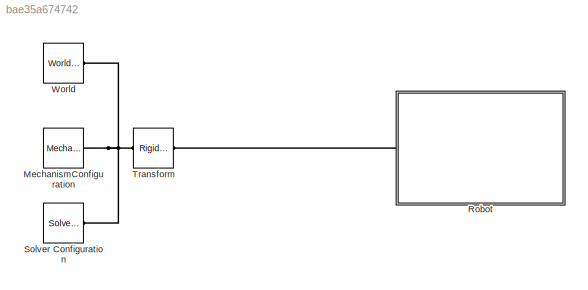
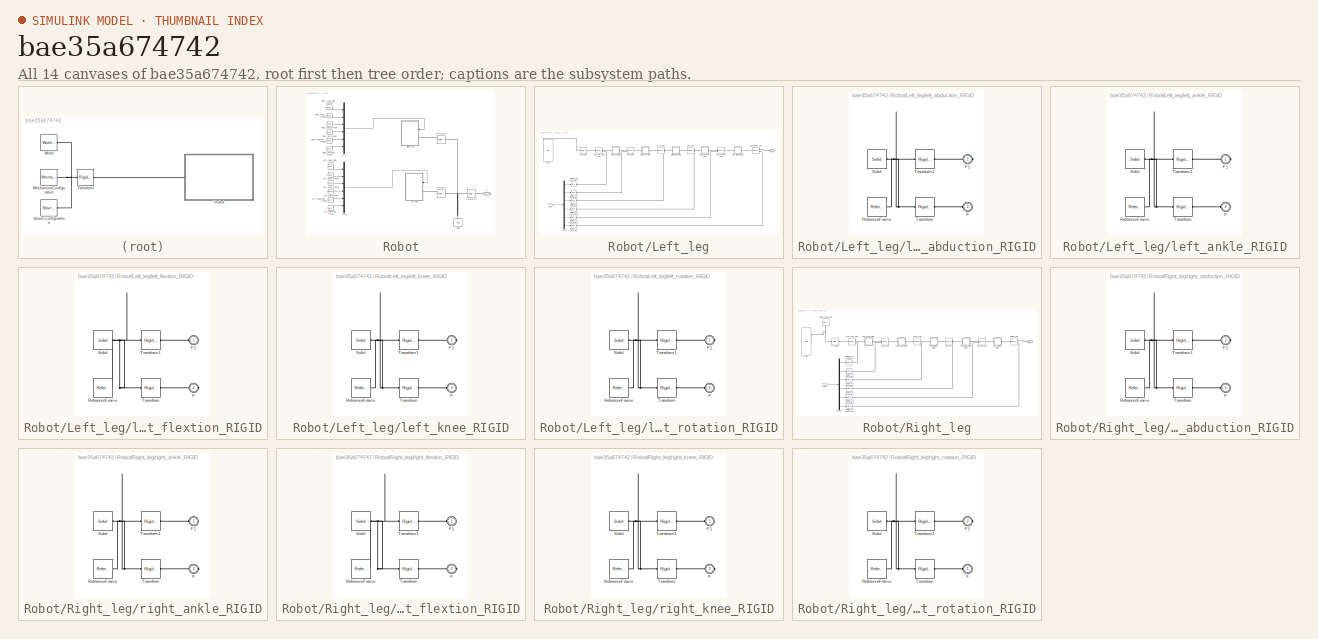
[diagram: thumbnail index - all 14 canvases of the model, root first then tree order]
MODEL slx_bae35a674742
KIND model
CONFIG AbsTol = auto
CONFIG EnableMultiTasking = off
CONFIG FixedStep = auto
CONFIG MaxStep = auto
CONFIG MinStep = auto
CONFIG RelTol = 1e-3
CONFIG SampleTimeConstraint = Unconstrained
CONFIG Solver = VariableStepAuto
CONFIG SolverName = VariableStepAuto
CONFIG StartTime = 0.0
CONFIG StopTime = 10.0
WORKSPACE source: external: MATLAB File  (data not in archive)
BLOCK [Reference] MechanismConfiguration  REF=sm_lib/Utilities/Mechanism
Configuration
  Ports = [0, 0, 0, 0, 0, 0, 1]
  SourceBlock = sm_lib/Utilities/Mechanism\nConfiguration
  SourceProductBaseCode = MS
  SourceProductName = Simscape Multibody
  SourceType = Mechanism\nConfiguration
BLOCK [SubSystem] Robot
  Ports = [0, 0, 0, 0, 0, 0, 1]
  RequestExecContextInheritance = off
BLOCK [Reference] Robot/Left_Abduction_Motion  REF=simulink/Sources/Repeating
Sequence
  Ports = [0, 1]
  SourceBlock = simulink/Sources/Repeating\nSequence
  SourceProductBaseCode = SL
  SourceProductName = Simulink
  SourceType = Repeating table
BLOCK [Reference] Robot/Left_Ankle Motion  REF=simulink/Sources/Repeating
Sequence
  Ports = [0, 1]
  SourceBlock = simulink/Sources/Repeating\nSequence
  SourceProductBaseCode = SL
  SourceProductName = Simulink
  SourceType = Repeating table
BLOCK [Reference] Robot/Left_Ankle_Twist_Motion  REF=simulink/Sources/Repeating
Sequence
  Ports = [0, 1]
  SourceBlock = simulink/Sources/Repeating\nSequence
  SourceProductBaseCode = SL
  SourceProductName = Simulink
  SourceType = Repeating table
BLOCK [Reference] Robot/Left_Hip_Motion  REF=simulink/Sources/Repeating
Sequence
  Ports = [0, 1]
  SourceBlock = simulink/Sources/Repeating\nSequence
  SourceProductBaseCode = SL
  SourceProductName = Simulink
  SourceType = Repeating table
BLOCK [Reference] Robot/Left_Knee_Motion  REF=simulink/Sources/Repeating
Sequence
  Ports = [0, 1]
  SourceBlock = simulink/Sources/Repeating\nSequence
  SourceProductBaseCode = SL
  SourceProductName = Simulink
  SourceType = Repeating table
BLOCK [Reference] Robot/Left_Rotation_Motion  REF=simulink/Sources/Repeating
Sequence
  Ports = [0, 1]
  SourceBlock = simulink/Sources/Repeating\nSequence
  SourceProductBaseCode = SL
  SourceProductName = Simulink
  SourceType = Repeating table
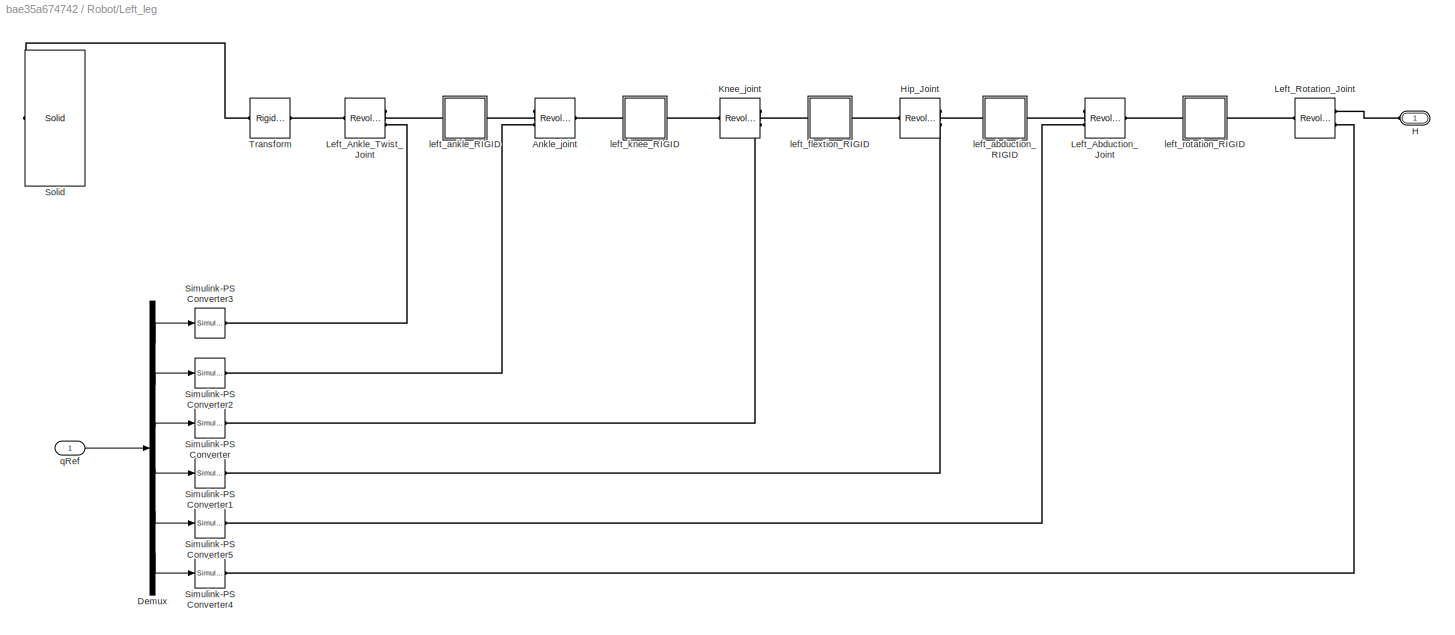
BLOCK [SubSystem] Robot/Left_leg
  Ports = [1, 0, 0, 0, 0, 1]
  RequestExecContextInheritance = off
BLOCK [Reference] Robot/Left_leg/Ankle_joint  REF=sm_lib/Joints/Revolute Joint
  Ports = [0, 0, 0, 0, 0, 2, 1]
  SourceBlock = sm_lib/Joints/Revolute Joint
  SourceProductBaseCode = MS
  SourceProductName = Simscape Multibody
  SourceType = Revolute Joint
BLOCK [Demux] Robot/Left_leg/Demux
  DisplayOption = bar
  Outputs = 6
  Ports = [1, 6]
BLOCK [PMIOPort] Robot/Left_leg/H
  Side = Left
BLOCK [Reference] Robot/Left_leg/Hip_Joint  REF=sm_lib/Joints/Revolute Joint
  Ports = [0, 0, 0, 0, 0, 2, 1]
  SourceBlock = sm_lib/Joints/Revolute Joint
  SourceProductBaseCode = MS
  SourceProductName = Simscape Multibody
  SourceType = Revolute Joint
BLOCK [Reference] Robot/Left_leg/Knee_joint  REF=sm_lib/Joints/Revolute Joint
  Ports = [0, 0, 0, 0, 0, 2, 1]
  SourceBlock = sm_lib/Joints/Revolute Joint
  SourceProductBaseCode = MS
  SourceProductName = Simscape Multibody
  SourceType = Revolute Joint
BLOCK [Reference] Robot/Left_leg/Left_Abduction_Joint  REF=sm_lib/Joints/Revolute Joint
  Ports = [0, 0, 0, 0, 0, 2, 1]
  SourceBlock = sm_lib/Joints/Revolute Joint
  SourceProductBaseCode = MS
  SourceProductName = Simscape Multibody
  SourceType = Revolute Joint
BLOCK [Reference] Robot/Left_leg/Left_Ankle_Twist_Joint  REF=sm_lib/Joints/Revolute Joint
  Ports = [0, 0, 0, 0, 0, 2, 1]
  SourceBlock = sm_lib/Joints/Revolute Joint
  SourceProductBaseCode = MS
  SourceProductName = Simscape Multibody
  SourceType = Revolute Joint
BLOCK [Reference] Robot/Left_leg/Left_Rotation_Joint  REF=sm_lib/Joints/Revolute Joint
  Ports = [0, 0, 0, 0, 0, 2, 1]
  SourceBlock = sm_lib/Joints/Revolute Joint
  SourceProductBaseCode = MS
  SourceProductName = Simscape Multibody
  SourceType = Revolute Joint
BLOCK [Reference] Robot/Left_leg/Simulink-PS Converter  REF=nesl_utility/Simulink-PS
Converter
  Ports = [1, 0, 0, 0, 0, 0, 1]
  SourceBlock = nesl_utility/Simulink-PS\nConverter
  SourceProductBaseCode = SS
  SourceProductName = Simscape
  SourceType = Simulink-PS\nConverter
BLOCK [Reference] Robot/Left_leg/Simulink-PS Converter1  REF=nesl_utility/Simulink-PS
Converter
  Ports = [1, 0, 0, 0, 0, 0, 1]
  SourceBlock = nesl_utility/Simulink-PS\nConverter
  SourceProductBaseCode = SS
  SourceProductName = Simscape
  SourceType = Simulink-PS\nConverter
BLOCK [Reference] Robot/Left_leg/Simulink-PS Converter2  REF=nesl_utility/Simulink-PS
Converter
  Ports = [1, 0, 0, 0, 0, 0, 1]
  SourceBlock = nesl_utility/Simulink-PS\nConverter
  SourceProductBaseCode = SS
  SourceProductName = Simscape
  SourceType = Simulink-PS\nConverter
BLOCK [Reference] Robot/Left_leg/Simulink-PS Converter3  REF=nesl_utility/Simulink-PS
Converter
  Ports = [1, 0, 0, 0, 0, 0, 1]
  SourceBlock = nesl_utility/Simulink-PS\nConverter
  SourceProductBaseCode = SS
  SourceProductName = Simscape
  SourceType = Simulink-PS\nConverter
BLOCK [Reference] Robot/Left_leg/Simulink-PS Converter4  REF=nesl_utility/Simulink-PS
Converter
  Ports = [1, 0, 0, 0, 0, 0, 1]
  SourceBlock = nesl_utility/Simulink-PS\nConverter
  SourceProductBaseCode = SS
  SourceProductName = Simscape
  SourceType = Simulink-PS\nConverter
BLOCK [Reference] Robot/Left_leg/Simulink-PS Converter5  REF=nesl_utility/Simulink-PS
Converter
  Ports = [1, 0, 0, 0, 0, 0, 1]
  SourceBlock = nesl_utility/Simulink-PS\nConverter
  SourceProductBaseCode = SS
  SourceProductName = Simscape
  SourceType = Simulink-PS\nConverter
BLOCK [Reference] Robot/Left_leg/Solid  REF=sm_lib/Body Elements/Solid
  Ports = [0, 0, 0, 0, 0, 0, 1]
  SourceBlock = sm_lib/Body Elements/Solid
  SourceProductBaseCode = MS
  SourceProductName = Simscape Multibody
  SourceType = Solid
BLOCK [Reference] Robot/Left_leg/Transform  REF=sm_lib/Frames and
Transforms/Rigid
Transform
  Ports = [0, 0, 0, 0, 0, 1, 1]
  SourceBlock = sm_lib/Frames and\nTransforms/Rigid\nTransform
  SourceProductBaseCode = MS
  SourceProductName = Simscape Multibody
  SourceType = Rigid\nTransform
BLOCK [SubSystem] Robot/Left_leg/left_abduction_RIGID
  Ports = [0, 0, 0, 0, 0, 1, 1]
  RequestExecContextInheritance = off
BLOCK [PMIOPort] Robot/Left_leg/left_abduction_RIGID/F
  Port = 2
  Side = Left
BLOCK [PMIOPort] Robot/Left_leg/left_abduction_RIGID/F1
  Side = Right
BLOCK [Reference] Robot/Left_leg/left_abduction_RIGID/ReferenceFrame  REF=sm_lib/Frames and
Transforms/Reference
Frame
  Ports = [0, 0, 0, 0, 0, 0, 1]
  SourceBlock = sm_lib/Frames and\nTransforms/Reference\nFrame
  SourceProductBaseCode = MS
  SourceProductName = Simscape Multibody
  SourceType = Reference\nFrame
BLOCK [Reference] Robot/Left_leg/left_abduction_RIGID/Solid  REF=sm_lib/Body Elements/Solid
  Ports = [0, 0, 0, 0, 0, 0, 1]
  SourceBlock = sm_lib/Body Elements/Solid
  SourceProductBaseCode = MS
  SourceProductName = Simscape Multibody
  SourceType = Solid
BLOCK [Reference] Robot/Left_leg/left_abduction_RIGID/Transform  REF=sm_lib/Frames and
Transforms/Rigid
Transform
  Ports = [0, 0, 0, 0, 0, 1, 1]
  SourceBlock = sm_lib/Frames and\nTransforms/Rigid\nTransform
  SourceProductBaseCode = MS
  SourceProductName = Simscape Multibody
  SourceType = Rigid\nTransform
BLOCK [Reference] Robot/Left_leg/left_abduction_RIGID/Transform1  REF=sm_lib/Frames and
Transforms/Rigid
Transform
  Ports = [0, 0, 0, 0, 0, 1, 1]
  SourceBlock = sm_lib/Frames and\nTransforms/Rigid\nTransform
  SourceProductBaseCode = MS
  SourceProductName = Simscape Multibody
  SourceType = Rigid\nTransform
BLOCK [SubSystem] Robot/Left_leg/left_ankle_RIGID
  Ports = [0, 0, 0, 0, 0, 1, 1]
  RequestExecContextInheritance = off
BLOCK [PMIOPort] Robot/Left_leg/left_ankle_RIGID/F
  Port = 2
  Side = Left
BLOCK [PMIOPort] Robot/Left_leg/left_ankle_RIGID/F1
  Side = Right
BLOCK [Reference] Robot/Left_leg/left_ankle_RIGID/ReferenceFrame  REF=sm_lib/Frames and
Transforms/Reference
Frame
  Ports = [0, 0, 0, 0, 0, 0, 1]
  SourceBlock = sm_lib/Frames and\nTransforms/Reference\nFrame
  SourceProductBaseCode = MS
  SourceProductName = Simscape Multibody
  SourceType = Reference\nFrame
BLOCK [Reference] Robot/Left_leg/left_ankle_RIGID/Solid  REF=sm_lib/Body Elements/Solid
  Ports = [0, 0, 0, 0, 0, 0, 1]
  SourceBlock = sm_lib/Body Elements/Solid
  SourceProductBaseCode = MS
  SourceProductName = Simscape Multibody
  SourceType = Solid
BLOCK [Reference] Robot/Left_leg/left_ankle_RIGID/Transform  REF=sm_lib/Frames and
Transforms/Rigid
Transform
  Ports = [0, 0, 0, 0, 0, 1, 1]
  SourceBlock = sm_lib/Frames and\nTransforms/Rigid\nTransform
  SourceProductBaseCode = MS
  SourceProductName = Simscape Multibody
  SourceType = Rigid\nTransform
BLOCK [Reference] Robot/Left_leg/left_ankle_RIGID/Transform1  REF=sm_lib/Frames and
Transforms/Rigid
Transform
  Ports = [0, 0, 0, 0, 0, 1, 1]
  SourceBlock = sm_lib/Frames and\nTransforms/Rigid\nTransform
  SourceProductBaseCode = MS
  SourceProductName = Simscape Multibody
  SourceType = Rigid\nTransform
BLOCK [SubSystem] Robot/Left_leg/left_flextion_RIGID
  Ports = [0, 0, 0, 0, 0, 1, 1]
  RequestExecContextInheritance = off
BLOCK [PMIOPort] Robot/Left_leg/left_flextion_RIGID/F
  Port = 2
  Side = Right
BLOCK [PMIOPort] Robot/Left_leg/left_flextion_RIGID/F1
  Side = Left
BLOCK [Reference] Robot/Left_leg/left_flextion_RIGID/ReferenceFrame  REF=sm_lib/Frames and
Transforms/Reference
Frame
  Ports = [0, 0, 0, 0, 0, 0, 1]
  SourceBlock = sm_lib/Frames and\nTransforms/Reference\nFrame
  SourceProductBaseCode = MS
  SourceProductName = Simscape Multibody
  SourceType = Reference\nFrame
BLOCK [Reference] Robot/Left_leg/left_flextion_RIGID/Solid  REF=sm_lib/Body Elements/Solid
  Ports = [0, 0, 0, 0, 0, 0, 1]
  SourceBlock = sm_lib/Body Elements/Solid
  SourceProductBaseCode = MS
  SourceProductName = Simscape Multibody
  SourceType = Solid
BLOCK [Reference] Robot/Left_leg/left_flextion_RIGID/Transform  REF=sm_lib/Frames and
Transforms/Rigid
Transform
  Ports = [0, 0, 0, 0, 0, 1, 1]
  SourceBlock = sm_lib/Frames and\nTransforms/Rigid\nTransform
  SourceProductBaseCode = MS
  SourceProductName = Simscape Multibody
  SourceType = Rigid\nTransform
BLOCK [Reference] Robot/Left_leg/left_flextion_RIGID/Transform1  REF=sm_lib/Frames and
Transforms/Rigid
Transform
  Ports = [0, 0, 0, 0, 0, 1, 1]
  SourceBlock = sm_lib/Frames and\nTransforms/Rigid\nTransform
  SourceProductBaseCode = MS
  SourceProductName = Simscape Multibody
  SourceType = Rigid\nTransform
BLOCK [SubSystem] Robot/Left_leg/left_knee_RIGID
  Ports = [0, 0, 0, 0, 0, 1, 1]
  RequestExecContextInheritance = off
BLOCK [PMIOPort] Robot/Left_leg/left_knee_RIGID/F
  Port = 2
  Side = Left
BLOCK [PMIOPort] Robot/Left_leg/left_knee_RIGID/F1
  Side = Right
BLOCK [Reference] Robot/Left_leg/left_knee_RIGID/ReferenceFrame  REF=sm_lib/Frames and
Transforms/Reference
Frame
  Ports = [0, 0, 0, 0, 0, 0, 1]
  SourceBlock = sm_lib/Frames and\nTransforms/Reference\nFrame
  SourceProductBaseCode = MS
  SourceProductName = Simscape Multibody
  SourceType = Reference\nFrame
BLOCK [Reference] Robot/Left_leg/left_knee_RIGID/Solid  REF=sm_lib/Body Elements/Solid
  Ports = [0, 0, 0, 0, 0, 0, 1]
  SourceBlock = sm_lib/Body Elements/Solid
  SourceProductBaseCode = MS
  SourceProductName = Simscape Multibody
  SourceType = Solid
BLOCK [Reference] Robot/Left_leg/left_knee_RIGID/Transform  REF=sm_lib/Frames and
Transforms/Rigid
Transform
  Ports = [0, 0, 0, 0, 0, 1, 1]
  SourceBlock = sm_lib/Frames and\nTransforms/Rigid\nTransform
  SourceProductBaseCode = MS
  SourceProductName = Simscape Multibody
  SourceType = Rigid\nTransform
BLOCK [Reference] Robot/Left_leg/left_knee_RIGID/Transform1  REF=sm_lib/Frames and
Transforms/Rigid
Transform
  Ports = [0, 0, 0, 0, 0, 1, 1]
  SourceBlock = sm_lib/Frames and\nTransforms/Rigid\nTransform
  SourceProductBaseCode = MS
  SourceProductName = Simscape Multibody
  SourceType = Rigid\nTransform
BLOCK [SubSystem] Robot/Left_leg/left_rotation_RIGID
  Ports = [0, 0, 0, 0, 0, 1, 1]
  RequestExecContextInheritance = off
BLOCK [PMIOPort] Robot/Left_leg/left_rotation_RIGID/F
  Port = 2
  Side = Left
BLOCK [PMIOPort] Robot/Left_leg/left_rotation_RIGID/F1
  Side = Right
BLOCK [Reference] Robot/Left_leg/left_rotation_RIGID/ReferenceFrame  REF=sm_lib/Frames and
Transforms/Reference
Frame
  Ports = [0, 0, 0, 0, 0, 0, 1]
  SourceBlock = sm_lib/Frames and\nTransforms/Reference\nFrame
  SourceProductBaseCode = MS
  SourceProductName = Simscape Multibody
  SourceType = Reference\nFrame
BLOCK [Reference] Robot/Left_leg/left_rotation_RIGID/Solid  REF=sm_lib/Body Elements/Solid
  Ports = [0, 0, 0, 0, 0, 0, 1]
  SourceBlock = sm_lib/Body Elements/Solid
  SourceProductBaseCode = MS
  SourceProductName = Simscape Multibody
  SourceType = Solid
BLOCK [Reference] Robot/Left_leg/left_rotation_RIGID/Transform  REF=sm_lib/Frames and
Transforms/Rigid
Transform
  Ports = [0, 0, 0, 0, 0, 1, 1]
  SourceBlock = sm_lib/Frames and\nTransforms/Rigid\nTransform
  SourceProductBaseCode = MS
  SourceProductName = Simscape Multibody
  SourceType = Rigid\nTransform
BLOCK [Reference] Robot/Left_leg/left_rotation_RIGID/Transform1  REF=sm_lib/Frames and
Transforms/Rigid
Transform
  Ports = [0, 0, 0, 0, 0, 1, 1]
  SourceBlock = sm_lib/Frames and\nTransforms/Rigid\nTransform
  SourceProductBaseCode = MS
  SourceProductName = Simscape Multibody
  SourceType = Rigid\nTransform
BLOCK [Inport] Robot/Left_leg/qRef
  IconDisplay = Port number
BLOCK [Mux] Robot/Mux
  DisplayOption = bar
  Inputs = 6
  Ports = [6, 1]
BLOCK [Mux] Robot/Mux1
  DisplayOption = bar
  Inputs = 6
  Ports = [6, 1]
BLOCK [PMIOPort] Robot/R
  Side = Right
BLOCK [Reference] Robot/Right_Abduction_Motion  REF=simulink/Sources/Repeating
Sequence
  Ports = [0, 1]
  SourceBlock = simulink/Sources/Repeating\nSequence
  SourceProductBaseCode = SL
  SourceProductName = Simulink
  SourceType = Repeating table
BLOCK [Reference] Robot/Right_Ankle_Motion  REF=simulink/Sources/Repeating
Sequence
  Ports = [0, 1]
  SourceBlock = simulink/Sources/Repeating\nSequence
  SourceProductBaseCode = SL
  SourceProductName = Simulink
  SourceType = Repeating table
BLOCK [Reference] Robot/Right_Ankle_Twist_Motion  REF=simulink/Sources/Repeating
Sequence
  Ports = [0, 1]
  SourceBlock = simulink/Sources/Repeating\nSequence
  SourceProductBaseCode = SL
  SourceProductName = Simulink
  SourceType = Repeating table
BLOCK [Reference] Robot/Right_Hip_Motion  REF=simulink/Sources/Repeating
Sequence
  Ports = [0, 1]
  SourceBlock = simulink/Sources/Repeating\nSequence
  SourceProductBaseCode = SL
  SourceProductName = Simulink
  SourceType = Repeating table
BLOCK [Reference] Robot/Right_Knee_Motion  REF=simulink/Sources/Repeating
Sequence
  Ports = [0, 1]
  SourceBlock = simulink/Sources/Repeating\nSequence
  SourceProductBaseCode = SL
  SourceProductName = Simulink
  SourceType = Repeating table
BLOCK [Reference] Robot/Right_Rotation_Motion  REF=simulink/Sources/Repeating
Sequence
  Ports = [0, 1]
  SourceBlock = simulink/Sources/Repeating\nSequence
  SourceProductBaseCode = SL
  SourceProductName = Simulink
  SourceType = Repeating table
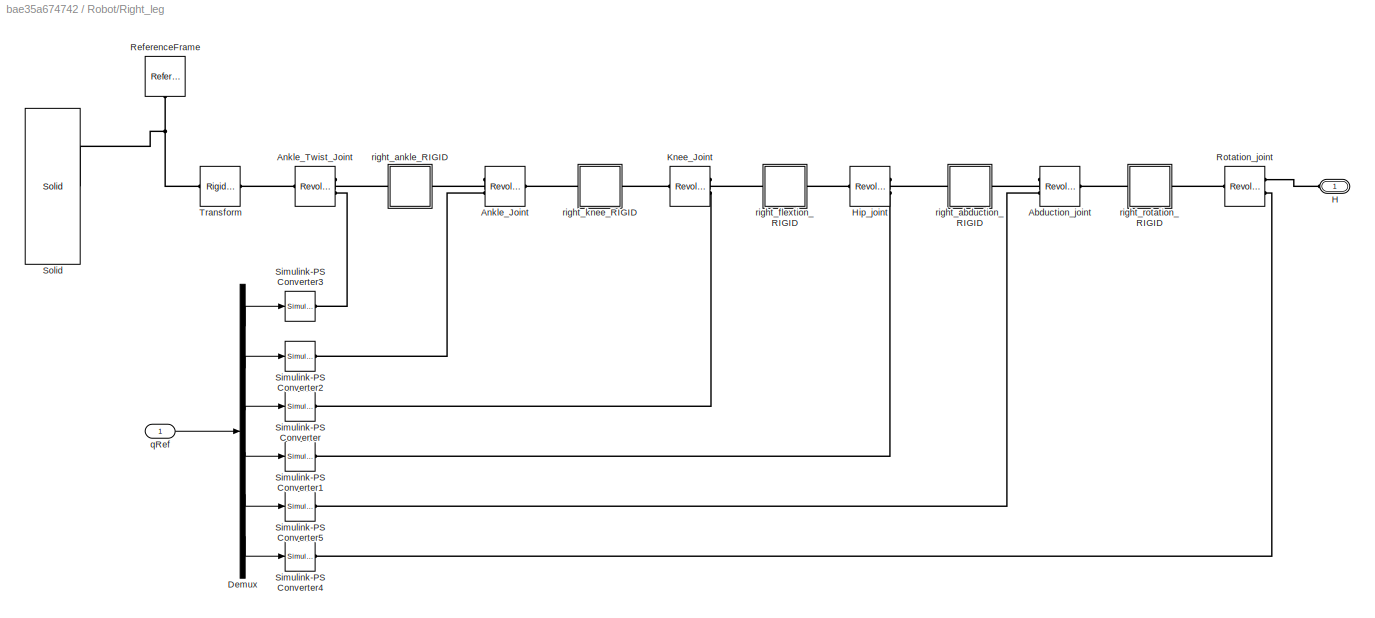
BLOCK [SubSystem] Robot/Right_leg
  Ports = [1, 0, 0, 0, 0, 1]
  RequestExecContextInheritance = off
BLOCK [Reference] Robot/Right_leg/Abduction_joint  REF=sm_lib/Joints/Revolute Joint
  Ports = [0, 0, 0, 0, 0, 2, 1]
  SourceBlock = sm_lib/Joints/Revolute Joint
  SourceProductBaseCode = MS
  SourceProductName = Simscape Multibody
  SourceType = Revolute Joint
BLOCK [Reference] Robot/Right_leg/Ankle_Joint  REF=sm_lib/Joints/Revolute Joint
  Ports = [0, 0, 0, 0, 0, 2, 1]
  SourceBlock = sm_lib/Joints/Revolute Joint
  SourceProductBaseCode = MS
  SourceProductName = Simscape Multibody
  SourceType = Revolute Joint
BLOCK [Reference] Robot/Right_leg/Ankle_Twist_Joint  REF=sm_lib/Joints/Revolute Joint
  Ports = [0, 0, 0, 0, 0, 2, 1]
  SourceBlock = sm_lib/Joints/Revolute Joint
  SourceProductBaseCode = MS
  SourceProductName = Simscape Multibody
  SourceType = Revolute Joint
BLOCK [Demux] Robot/Right_leg/Demux
  DisplayOption = bar
  Outputs = 6
  Ports = [1, 6]
BLOCK [PMIOPort] Robot/Right_leg/H
  Side = Left
BLOCK [Reference] Robot/Right_leg/Hip_joint  REF=sm_lib/Joints/Revolute Joint
  Ports = [0, 0, 0, 0, 0, 2, 1]
  SourceBlock = sm_lib/Joints/Revolute Joint
  SourceProductBaseCode = MS
  SourceProductName = Simscape Multibody
  SourceType = Revolute Joint
BLOCK [Reference] Robot/Right_leg/Knee_Joint  REF=sm_lib/Joints/Revolute Joint
  Ports = [0, 0, 0, 0, 0, 2, 1]
  SourceBlock = sm_lib/Joints/Revolute Joint
  SourceProductBaseCode = MS
  SourceProductName = Simscape Multibody
  SourceType = Revolute Joint
BLOCK [Reference] Robot/Right_leg/ReferenceFrame  REF=sm_lib/Frames and
Transforms/Reference
Frame
  Ports = [0, 0, 0, 0, 0, 0, 1]
  SourceBlock = sm_lib/Frames and\nTransforms/Reference\nFrame
  SourceProductBaseCode = MS
  SourceProductName = Simscape Multibody
  SourceType = Reference\nFrame
BLOCK [Reference] Robot/Right_leg/Rotation_joint  REF=sm_lib/Joints/Revolute Joint
  Ports = [0, 0, 0, 0, 0, 2, 1]
  SourceBlock = sm_lib/Joints/Revolute Joint
  SourceProductBaseCode = MS
  SourceProductName = Simscape Multibody
  SourceType = Revolute Joint
BLOCK [Reference] Robot/Right_leg/Simulink-PS Converter  REF=nesl_utility/Simulink-PS
Converter
  Ports = [1, 0, 0, 0, 0, 0, 1]
  SourceBlock = nesl_utility/Simulink-PS\nConverter
  SourceProductBaseCode = SS
  SourceProductName = Simscape
  SourceType = Simulink-PS\nConverter
BLOCK [Reference] Robot/Right_leg/Simulink-PS Converter1  REF=nesl_utility/Simulink-PS
Converter
  Ports = [1, 0, 0, 0, 0, 0, 1]
  SourceBlock = nesl_utility/Simulink-PS\nConverter
  SourceProductBaseCode = SS
  SourceProductName = Simscape
  SourceType = Simulink-PS\nConverter
BLOCK [Reference] Robot/Right_leg/Simulink-PS Converter2  REF=nesl_utility/Simulink-PS
Converter
  Ports = [1, 0, 0, 0, 0, 0, 1]
  SourceBlock = nesl_utility/Simulink-PS\nConverter
  SourceProductBaseCode = SS
  SourceProductName = Simscape
  SourceType = Simulink-PS\nConverter
BLOCK [Reference] Robot/Right_leg/Simulink-PS Converter3  REF=nesl_utility/Simulink-PS
Converter
  Ports = [1, 0, 0, 0, 0, 0, 1]
  SourceBlock = nesl_utility/Simulink-PS\nConverter
  SourceProductBaseCode = SS
  SourceProductName = Simscape
  SourceType = Simulink-PS\nConverter
BLOCK [Reference] Robot/Right_leg/Simulink-PS Converter4  REF=nesl_utility/Simulink-PS
Converter
  Ports = [1, 0, 0, 0, 0, 0, 1]
  SourceBlock = nesl_utility/Simulink-PS\nConverter
  SourceProductBaseCode = SS
  SourceProductName = Simscape
  SourceType = Simulink-PS\nConverter
BLOCK [Reference] Robot/Right_leg/Simulink-PS Converter5  REF=nesl_utility/Simulink-PS
Converter
  Ports = [1, 0, 0, 0, 0, 0, 1]
  SourceBlock = nesl_utility/Simulink-PS\nConverter
  SourceProductBaseCode = SS
  SourceProductName = Simscape
  SourceType = Simulink-PS\nConverter
BLOCK [Reference] Robot/Right_leg/Solid  REF=sm_lib/Body Elements/Solid
  Ports = [0, 0, 0, 0, 0, 0, 1]
  SourceBlock = sm_lib/Body Elements/Solid
  SourceProductBaseCode = MS
  SourceProductName = Simscape Multibody
  SourceType = Solid
BLOCK [Reference] Robot/Right_leg/Transform  REF=sm_lib/Frames and
Transforms/Rigid
Transform
  Ports = [0, 0, 0, 0, 0, 1, 1]
  SourceBlock = sm_lib/Frames and\nTransforms/Rigid\nTransform
  SourceProductBaseCode = MS
  SourceProductName = Simscape Multibody
  SourceType = Rigid\nTransform
BLOCK [Inport] Robot/Right_leg/qRef
  IconDisplay = Port number
BLOCK [SubSystem] Robot/Right_leg/right_abduction_RIGID
  Ports = [0, 0, 0, 0, 0, 1, 1]
  RequestExecContextInheritance = off
BLOCK [PMIOPort] Robot/Right_leg/right_abduction_RIGID/F
  Side = Left
BLOCK [PMIOPort] Robot/Right_leg/right_abduction_RIGID/F1
  Port = 2
  Side = Right
BLOCK [Reference] Robot/Right_leg/right_abduction_RIGID/ReferenceFrame  REF=sm_lib/Frames and
Transforms/Reference
Frame
  Ports = [0, 0, 0, 0, 0, 0, 1]
  SourceBlock = sm_lib/Frames and\nTransforms/Reference\nFrame
  SourceProductBaseCode = MS
  SourceProductName = Simscape Multibody
  SourceType = Reference\nFrame
BLOCK [Reference] Robot/Right_leg/right_abduction_RIGID/Solid  REF=sm_lib/Body Elements/Solid
  Ports = [0, 0, 0, 0, 0, 0, 1]
  SourceBlock = sm_lib/Body Elements/Solid
  SourceProductBaseCode = MS
  SourceProductName = Simscape Multibody
  SourceType = Solid
BLOCK [Reference] Robot/Right_leg/right_abduction_RIGID/Transform  REF=sm_lib/Frames and
Transforms/Rigid
Transform
  Ports = [0, 0, 0, 0, 0, 1, 1]
  SourceBlock = sm_lib/Frames and\nTransforms/Rigid\nTransform
  SourceProductBaseCode = MS
  SourceProductName = Simscape Multibody
  SourceType = Rigid\nTransform
BLOCK [Reference] Robot/Right_leg/right_abduction_RIGID/Transform1  REF=sm_lib/Frames and
Transforms/Rigid
Transform
  Ports = [0, 0, 0, 0, 0, 1, 1]
  SourceBlock = sm_lib/Frames and\nTransforms/Rigid\nTransform
  SourceProductBaseCode = MS
  SourceProductName = Simscape Multibody
  SourceType = Rigid\nTransform
BLOCK [SubSystem] Robot/Right_leg/right_ankle_RIGID
  Ports = [0, 0, 0, 0, 0, 1, 1]
  RequestExecContextInheritance = off
BLOCK [PMIOPort] Robot/Right_leg/right_ankle_RIGID/F
  Port = 2
  Side = Right
BLOCK [PMIOPort] Robot/Right_leg/right_ankle_RIGID/F1
  Side = Left
BLOCK [Reference] Robot/Right_leg/right_ankle_RIGID/ReferenceFrame  REF=sm_lib/Frames and
Transforms/Reference
Frame
  Ports = [0, 0, 0, 0, 0, 0, 1]
  SourceBlock = sm_lib/Frames and\nTransforms/Reference\nFrame
  SourceProductBaseCode = MS
  SourceProductName = Simscape Multibody
  SourceType = Reference\nFrame
BLOCK [Reference] Robot/Right_leg/right_ankle_RIGID/Solid  REF=sm_lib/Body Elements/Solid
  Ports = [0, 0, 0, 0, 0, 0, 1]
  SourceBlock = sm_lib/Body Elements/Solid
  SourceProductBaseCode = MS
  SourceProductName = Simscape Multibody
  SourceType = Solid
BLOCK [Reference] Robot/Right_leg/right_ankle_RIGID/Transform  REF=sm_lib/Frames and
Transforms/Rigid
Transform
  Ports = [0, 0, 0, 0, 0, 1, 1]
  SourceBlock = sm_lib/Frames and\nTransforms/Rigid\nTransform
  SourceProductBaseCode = MS
  SourceProductName = Simscape Multibody
  SourceType = Rigid\nTransform
BLOCK [Reference] Robot/Right_leg/right_ankle_RIGID/Transform1  REF=sm_lib/Frames and
Transforms/Rigid
Transform
  Ports = [0, 0, 0, 0, 0, 1, 1]
  SourceBlock = sm_lib/Frames and\nTransforms/Rigid\nTransform
  SourceProductBaseCode = MS
  SourceProductName = Simscape Multibody
  SourceType = Rigid\nTransform
BLOCK [SubSystem] Robot/Right_leg/right_flextion_RIGID
  Ports = [0, 0, 0, 0, 0, 1, 1]
  RequestExecContextInheritance = off
BLOCK [PMIOPort] Robot/Right_leg/right_flextion_RIGID/F
  Port = 2
  Side = Right
BLOCK [PMIOPort] Robot/Right_leg/right_flextion_RIGID/F1
  Side = Left
BLOCK [Reference] Robot/Right_leg/right_flextion_RIGID/ReferenceFrame  REF=sm_lib/Frames and
Transforms/Reference
Frame
  Ports = [0, 0, 0, 0, 0, 0, 1]
  SourceBlock = sm_lib/Frames and\nTransforms/Reference\nFrame
  SourceProductBaseCode = MS
  SourceProductName = Simscape Multibody
  SourceType = Reference\nFrame
BLOCK [Reference] Robot/Right_leg/right_flextion_RIGID/Solid  REF=sm_lib/Body Elements/Solid
  Ports = [0, 0, 0, 0, 0, 0, 1]
  SourceBlock = sm_lib/Body Elements/Solid
  SourceProductBaseCode = MS
  SourceProductName = Simscape Multibody
  SourceType = Solid
BLOCK [Reference] Robot/Right_leg/right_flextion_RIGID/Transform  REF=sm_lib/Frames and
Transforms/Rigid
Transform
  Ports = [0, 0, 0, 0, 0, 1, 1]
  SourceBlock = sm_lib/Frames and\nTransforms/Rigid\nTransform
  SourceProductBaseCode = MS
  SourceProductName = Simscape Multibody
  SourceType = Rigid\nTransform
BLOCK [Reference] Robot/Right_leg/right_flextion_RIGID/Transform1  REF=sm_lib/Frames and
Transforms/Rigid
Transform
  Ports = [0, 0, 0, 0, 0, 1, 1]
  SourceBlock = sm_lib/Frames and\nTransforms/Rigid\nTransform
  SourceProductBaseCode = MS
  SourceProductName = Simscape Multibody
  SourceType = Rigid\nTransform
BLOCK [SubSystem] Robot/Right_leg/right_knee_RIGID
  Ports = [0, 0, 0, 0, 0, 1, 1]
  RequestExecContextInheritance = off
BLOCK [PMIOPort] Robot/Right_leg/right_knee_RIGID/F
  Port = 2
  Side = Right
BLOCK [PMIOPort] Robot/Right_leg/right_knee_RIGID/F1
  Side = Left
BLOCK [Reference] Robot/Right_leg/right_knee_RIGID/ReferenceFrame  REF=sm_lib/Frames and
Transforms/Reference
Frame
  Ports = [0, 0, 0, 0, 0, 0, 1]
  SourceBlock = sm_lib/Frames and\nTransforms/Reference\nFrame
  SourceProductBaseCode = MS
  SourceProductName = Simscape Multibody
  SourceType = Reference\nFrame
BLOCK [Reference] Robot/Right_leg/right_knee_RIGID/Solid  REF=sm_lib/Body Elements/Solid
  Ports = [0, 0, 0, 0, 0, 0, 1]
  SourceBlock = sm_lib/Body Elements/Solid
  SourceProductBaseCode = MS
  SourceProductName = Simscape Multibody
  SourceType = Solid
BLOCK [Reference] Robot/Right_leg/right_knee_RIGID/Transform  REF=sm_lib/Frames and
Transforms/Rigid
Transform
  Ports = [0, 0, 0, 0, 0, 1, 1]
  SourceBlock = sm_lib/Frames and\nTransforms/Rigid\nTransform
  SourceProductBaseCode = MS
  SourceProductName = Simscape Multibody
  SourceType = Rigid\nTransform
BLOCK [Reference] Robot/Right_leg/right_knee_RIGID/Transform1  REF=sm_lib/Frames and
Transforms/Rigid
Transform
  Ports = [0, 0, 0, 0, 0, 1, 1]
  SourceBlock = sm_lib/Frames and\nTransforms/Rigid\nTransform
  SourceProductBaseCode = MS
  SourceProductName = Simscape Multibody
  SourceType = Rigid\nTransform
BLOCK [SubSystem] Robot/Right_leg/right_rotation_RIGID
  Ports = [0, 0, 0, 0, 0, 1, 1]
  RequestExecContextInheritance = off
BLOCK [PMIOPort] Robot/Right_leg/right_rotation_RIGID/F
  Side = Left
BLOCK [PMIOPort] Robot/Right_leg/right_rotation_RIGID/F1
  Port = 2
  Side = Right
BLOCK [Reference] Robot/Right_leg/right_rotation_RIGID/ReferenceFrame  REF=sm_lib/Frames and
Transforms/Reference
Frame
  Ports = [0, 0, 0, 0, 0, 0, 1]
  SourceBlock = sm_lib/Frames and\nTransforms/Reference\nFrame
  SourceProductBaseCode = MS
  SourceProductName = Simscape Multibody
  SourceType = Reference\nFrame
BLOCK [Reference] Robot/Right_leg/right_rotation_RIGID/Solid  REF=sm_lib/Body Elements/Solid
  Ports = [0, 0, 0, 0, 0, 0, 1]
  SourceBlock = sm_lib/Body Elements/Solid
  SourceProductBaseCode = MS
  SourceProductName = Simscape Multibody
  SourceType = Solid
BLOCK [Reference] Robot/Right_leg/right_rotation_RIGID/Transform  REF=sm_lib/Frames and
Transforms/Rigid
Transform
  Ports = [0, 0, 0, 0, 0, 1, 1]
  SourceBlock = sm_lib/Frames and\nTransforms/Rigid\nTransform
  SourceProductBaseCode = MS
  SourceProductName = Simscape Multibody
  SourceType = Rigid\nTransform
BLOCK [Reference] Robot/Right_leg/right_rotation_RIGID/Transform1  REF=sm_lib/Frames and
Transforms/Rigid
Transform
  Ports = [0, 0, 0, 0, 0, 1, 1]
  SourceBlock = sm_lib/Frames and\nTransforms/Rigid\nTransform
  SourceProductBaseCode = MS
  SourceProductName = Simscape Multibody
  SourceType = Rigid\nTransform
BLOCK [Reference] Robot/Solid  REF=sm_lib/Body Elements/Solid
  Ports = [0, 0, 0, 0, 0, 0, 1]
  SourceBlock = sm_lib/Body Elements/Solid
  SourceProductBaseCode = MS
  SourceProductName = Simscape Multibody
  SourceType = Solid
BLOCK [Reference] Robot/Transform1  REF=sm_lib/Frames and
Transforms/Rigid
Transform
  Ports = [0, 0, 0, 0, 0, 1, 1]
  SourceBlock = sm_lib/Frames and\nTransforms/Rigid\nTransform
  SourceProductBaseCode = MS
  SourceProductName = Simscape Multibody
  SourceType = Rigid\nTransform
BLOCK [Reference] Robot/Transform2  REF=sm_lib/Frames and
Transforms/Rigid
Transform
  Ports = [0, 0, 0, 0, 0, 1, 1]
  SourceBlock = sm_lib/Frames and\nTransforms/Rigid\nTransform
  SourceProductBaseCode = MS
  SourceProductName = Simscape Multibody
  SourceType = Rigid\nTransform
BLOCK [Reference] Robot/Transform3  REF=sm_lib/Frames and
Transforms/Rigid
Transform
  Ports = [0, 0, 0, 0, 0, 1, 1]
  SourceBlock = sm_lib/Frames and\nTransforms/Rigid\nTransform
  SourceProductBaseCode = MS
  SourceProductName = Simscape Multibody
  SourceType = Rigid\nTransform
BLOCK [Reference] Solver Configuration  REF=nesl_utility/Solver
Configuration
  Ports = [0, 0, 0, 0, 0, 0, 1]
  SourceBlock = nesl_utility/Solver\nConfiguration
  SourceProductBaseCode = SS
  SourceProductName = Simscape
  SourceType = Solver\nConfiguration
BLOCK [Reference] Transform  REF=sm_lib/Frames and
Transforms/Rigid
Transform
  Ports = [0, 0, 0, 0, 0, 1, 1]
  SourceBlock = sm_lib/Frames and\nTransforms/Rigid\nTransform
  SourceProductBaseCode = MS
  SourceProductName = Simscape Multibody
  SourceType = Rigid\nTransform
BLOCK [Reference] World  REF=sm_lib/Frames and
Transforms/World Frame
  Ports = [0, 0, 0, 0, 0, 0, 1]
  SourceBlock = sm_lib/Frames and\nTransforms/World Frame
  SourceProductBaseCode = MS
  SourceProductName = Simscape Multibody
  SourceType = World Frame
LINE Robot/Left_Abduction_Motion:1 -> Robot/Mux1:5
LINE Robot/Left_Ankle Motion:1 -> Robot/Mux1:2
LINE Robot/Left_Ankle_Twist_Motion:1 -> Robot/Mux1:1
LINE Robot/Left_Hip_Motion:1 -> Robot/Mux1:4
LINE Robot/Left_Knee_Motion:1 -> Robot/Mux1:3
LINE Robot/Left_Rotation_Motion:1 -> Robot/Mux1:6
LINE Robot/Left_leg/Demux:1 -> Robot/Left_leg/Simulink-PS Converter3:1
LINE Robot/Left_leg/Demux:2 -> Robot/Left_leg/Simulink-PS Converter2:1
LINE Robot/Left_leg/Demux:3 -> Robot/Left_leg/Simulink-PS Converter:1
LINE Robot/Left_leg/Demux:4 -> Robot/Left_leg/Simulink-PS Converter1:1
LINE Robot/Left_leg/Demux:5 -> Robot/Left_leg/Simulink-PS Converter5:1
LINE Robot/Left_leg/Demux:6 -> Robot/Left_leg/Simulink-PS Converter4:1
LINE Robot/Left_leg/qRef:1 -> Robot/Left_leg/Demux:1
LINE Robot/Mux1:1 -> Robot/Left_leg:1
LINE Robot/Mux:1 -> Robot/Right_leg:1
LINE Robot/Right_Abduction_Motion:1 -> Robot/Mux:5
LINE Robot/Right_Ankle_Motion:1 -> Robot/Mux:2
LINE Robot/Right_Ankle_Twist_Motion:1 -> Robot/Mux:1
LINE Robot/Right_Hip_Motion:1 -> Robot/Mux:4
LINE Robot/Right_Knee_Motion:1 -> Robot/Mux:3
LINE Robot/Right_Rotation_Motion:1 -> Robot/Mux:6
LINE Robot/Right_leg/Demux:1 -> Robot/Right_leg/Simulink-PS Converter3:1
LINE Robot/Right_leg/Demux:2 -> Robot/Right_leg/Simulink-PS Converter2:1
LINE Robot/Right_leg/Demux:3 -> Robot/Right_leg/Simulink-PS Converter:1
LINE Robot/Right_leg/Demux:4 -> Robot/Right_leg/Simulink-PS Converter1:1
LINE Robot/Right_leg/Demux:5 -> Robot/Right_leg/Simulink-PS Converter5:1
LINE Robot/Right_leg/Demux:6 -> Robot/Right_leg/Simulink-PS Converter4:1
LINE Robot/Right_leg/qRef:1 -> Robot/Right_leg/Demux:1
PNET net1: MechanismConfiguration:RConn1 -- Solver Configuration:RConn1 -- Transform:LConn1 -- World:RConn1
PLINE Robot/Left_leg/Ankle_joint:LConn1 -- Robot/Left_leg/left_ankle_RIGID:RConn1
PLINE Robot/Left_leg/Ankle_joint:LConn2 -- Robot/Left_leg/Simulink-PS Converter2:RConn1
PLINE Robot/Left_leg/Ankle_joint:RConn1 -- Robot/Left_leg/left_knee_RIGID:LConn1
PLINE Robot/Left_leg/H:RConn1 -- Robot/Left_leg/Left_Rotation_Joint:LConn1
PLINE Robot/Left_leg/Hip_Joint:LConn1 -- Robot/Left_leg/left_abduction_RIGID:RConn1
PLINE Robot/Left_leg/Hip_Joint:LConn2 -- Robot/Left_leg/Simulink-PS Converter1:RConn1
PLINE Robot/Left_leg/Hip_Joint:RConn1 -- Robot/Left_leg/left_flextion_RIGID:LConn1
PLINE Robot/Left_leg/Knee_joint:LConn1 -- Robot/Left_leg/left_flextion_RIGID:RConn1
PLINE Robot/Left_leg/Knee_joint:LConn2 -- Robot/Left_leg/Simulink-PS Converter:RConn1
PLINE Robot/Left_leg/Knee_joint:RConn1 -- Robot/Left_leg/left_knee_RIGID:RConn1
PLINE Robot/Left_leg/Left_Abduction_Joint:LConn1 -- Robot/Left_leg/left_abduction_RIGID:LConn1
PLINE Robot/Left_leg/Left_Abduction_Joint:LConn2 -- Robot/Left_leg/Simulink-PS Converter5:RConn1
PLINE Robot/Left_leg/Left_Abduction_Joint:RConn1 -- Robot/Left_leg/left_rotation_RIGID:LConn1
PLINE Robot/Left_leg/Left_Ankle_Twist_Joint:LConn1 -- Robot/Left_leg/left_ankle_RIGID:LConn1
PLINE Robot/Left_leg/Left_Ankle_Twist_Joint:LConn2 -- Robot/Left_leg/Simulink-PS Converter3:RConn1
PLINE Robot/Left_leg/Left_Ankle_Twist_Joint:RConn1 -- Robot/Left_leg/Transform:RConn1
PLINE Robot/Left_leg/Left_Rotation_Joint:LConn2 -- Robot/Left_leg/Simulink-PS Converter4:RConn1
PLINE Robot/Left_leg/Left_Rotation_Joint:RConn1 -- Robot/Left_leg/left_rotation_RIGID:RConn1
PLINE Robot/Left_leg/Solid:RConn1 -- Robot/Left_leg/Transform:LConn1
PLINE Robot/Left_leg/left_abduction_RIGID/F1:RConn1 -- Robot/Left_leg/left_abduction_RIGID/Transform1:RConn1
PLINE Robot/Left_leg/left_abduction_RIGID/F:RConn1 -- Robot/Left_leg/left_abduction_RIGID/Transform:RConn1
PNET net2: Robot/Left_leg/left_abduction_RIGID/ReferenceFrame:RConn1 -- Robot/Left_leg/left_abduction_RIGID/Solid:RConn1 -- Robot/Left_leg/left_abduction_RIGID/Transform1:LConn1 -- Robot/Left_leg/left_abduction_RIGID/Transform:LConn1
PLINE Robot/Left_leg/left_ankle_RIGID/F1:RConn1 -- Robot/Left_leg/left_ankle_RIGID/Transform1:RConn1
PLINE Robot/Left_leg/left_ankle_RIGID/F:RConn1 -- Robot/Left_leg/left_ankle_RIGID/Transform:RConn1
PNET net3: Robot/Left_leg/left_ankle_RIGID/ReferenceFrame:RConn1 -- Robot/Left_leg/left_ankle_RIGID/Solid:RConn1 -- Robot/Left_leg/left_ankle_RIGID/Transform1:LConn1 -- Robot/Left_leg/left_ankle_RIGID/Transform:LConn1
PLINE Robot/Left_leg/left_flextion_RIGID/F1:RConn1 -- Robot/Left_leg/left_flextion_RIGID/Transform1:RConn1
PLINE Robot/Left_leg/left_flextion_RIGID/F:RConn1 -- Robot/Left_leg/left_flextion_RIGID/Transform:RConn1
PNET net4: Robot/Left_leg/left_flextion_RIGID/ReferenceFrame:RConn1 -- Robot/Left_leg/left_flextion_RIGID/Solid:RConn1 -- Robot/Left_leg/left_flextion_RIGID/Transform1:LConn1 -- Robot/Left_leg/left_flextion_RIGID/Transform:LConn1
PLINE Robot/Left_leg/left_knee_RIGID/F1:RConn1 -- Robot/Left_leg/left_knee_RIGID/Transform1:RConn1
PLINE Robot/Left_leg/left_knee_RIGID/F:RConn1 -- Robot/Left_leg/left_knee_RIGID/Transform:RConn1
PNET net5: Robot/Left_leg/left_knee_RIGID/ReferenceFrame:RConn1 -- Robot/Left_leg/left_knee_RIGID/Solid:RConn1 -- Robot/Left_leg/left_knee_RIGID/Transform1:LConn1 -- Robot/Left_leg/left_knee_RIGID/Transform:LConn1
PLINE Robot/Left_leg/left_rotation_RIGID/F1:RConn1 -- Robot/Left_leg/left_rotation_RIGID/Transform1:RConn1
PLINE Robot/Left_leg/left_rotation_RIGID/F:RConn1 -- Robot/Left_leg/left_rotation_RIGID/Transform:RConn1
PNET net6: Robot/Left_leg/left_rotation_RIGID/ReferenceFrame:RConn1 -- Robot/Left_leg/left_rotation_RIGID/Solid:RConn1 -- Robot/Left_leg/left_rotation_RIGID/Transform1:LConn1 -- Robot/Left_leg/left_rotation_RIGID/Transform:LConn1
PLINE Robot/Left_leg:LConn1 -- Robot/Transform1:RConn1
PLINE Robot/R:RConn1 -- Robot/Transform3:RConn1
PLINE Robot/Right_leg/Abduction_joint:LConn1 -- Robot/Right_leg/right_abduction_RIGID:RConn1
PLINE Robot/Right_leg/Abduction_joint:LConn2 -- Robot/Right_leg/Simulink-PS Converter5:RConn1
PLINE Robot/Right_leg/Abduction_joint:RConn1 -- Robot/Right_leg/right_rotation_RIGID:LConn1
PLINE Robot/Right_leg/Ankle_Joint:LConn1 -- Robot/Right_leg/right_ankle_RIGID:RConn1
PLINE Robot/Right_leg/Ankle_Joint:LConn2 -- Robot/Right_leg/Simulink-PS Converter2:RConn1
PLINE Robot/Right_leg/Ankle_Joint:RConn1 -- Robot/Right_leg/right_knee_RIGID:LConn1
PLINE Robot/Right_leg/Ankle_Twist_Joint:LConn1 -- Robot/Right_leg/right_ankle_RIGID:LConn1
PLINE Robot/Right_leg/Ankle_Twist_Joint:LConn2 -- Robot/Right_leg/Simulink-PS Converter3:RConn1
PLINE Robot/Right_leg/Ankle_Twist_Joint:RConn1 -- Robot/Right_leg/Transform:RConn1
PLINE Robot/Right_leg/H:RConn1 -- Robot/Right_leg/Rotation_joint:LConn1
PLINE Robot/Right_leg/Hip_joint:LConn1 -- Robot/Right_leg/right_abduction_RIGID:LConn1
PLINE Robot/Right_leg/Hip_joint:LConn2 -- Robot/Right_leg/Simulink-PS Converter1:RConn1
PLINE Robot/Right_leg/Hip_joint:RConn1 -- Robot/Right_leg/right_flextion_RIGID:LConn1
PLINE Robot/Right_leg/Knee_Joint:LConn1 -- Robot/Right_leg/right_flextion_RIGID:RConn1
PLINE Robot/Right_leg/Knee_Joint:LConn2 -- Robot/Right_leg/Simulink-PS Converter:RConn1
PLINE Robot/Right_leg/Knee_Joint:RConn1 -- Robot/Right_leg/right_knee_RIGID:RConn1
PNET net7: Robot/Right_leg/ReferenceFrame:RConn1 -- Robot/Right_leg/Solid:RConn1 -- Robot/Right_leg/Transform:LConn1
PLINE Robot/Right_leg/Rotation_joint:LConn2 -- Robot/Right_leg/Simulink-PS Converter4:RConn1
PLINE Robot/Right_leg/Rotation_joint:RConn1 -- Robot/Right_leg/right_rotation_RIGID:RConn1
PLINE Robot/Right_leg/right_abduction_RIGID/F1:RConn1 -- Robot/Right_leg/right_abduction_RIGID/Transform1:RConn1
PLINE Robot/Right_leg/right_abduction_RIGID/F:RConn1 -- Robot/Right_leg/right_abduction_RIGID/Transform:RConn1
PNET net8: Robot/Right_leg/right_abduction_RIGID/ReferenceFrame:RConn1 -- Robot/Right_leg/right_abduction_RIGID/Solid:RConn1 -- Robot/Right_leg/right_abduction_RIGID/Transform1:LConn1 -- Robot/Right_leg/right_abduction_RIGID/Transform:LConn1
PLINE Robot/Right_leg/right_ankle_RIGID/F1:RConn1 -- Robot/Right_leg/right_ankle_RIGID/Transform1:RConn1
PLINE Robot/Right_leg/right_ankle_RIGID/F:RConn1 -- Robot/Right_leg/right_ankle_RIGID/Transform:RConn1
PNET net9: Robot/Right_leg/right_ankle_RIGID/ReferenceFrame:RConn1 -- Robot/Right_leg/right_ankle_RIGID/Solid:RConn1 -- Robot/Right_leg/right_ankle_RIGID/Transform1:LConn1 -- Robot/Right_leg/right_ankle_RIGID/Transform:LConn1
PLINE Robot/Right_leg/right_flextion_RIGID/F1:RConn1 -- Robot/Right_leg/right_flextion_RIGID/Transform1:RConn1
PLINE Robot/Right_leg/right_flextion_RIGID/F:RConn1 -- Robot/Right_leg/right_flextion_RIGID/Transform:RConn1
PNET net10: Robot/Right_leg/right_flextion_RIGID/ReferenceFrame:RConn1 -- Robot/Right_leg/right_flextion_RIGID/Solid:RConn1 -- Robot/Right_leg/right_flextion_RIGID/Transform1:LConn1 -- Robot/Right_leg/right_flextion_RIGID/Transform:LConn1
PLINE Robot/Right_leg/right_knee_RIGID/F1:RConn1 -- Robot/Right_leg/right_knee_RIGID/Transform1:RConn1
PLINE Robot/Right_leg/right_knee_RIGID/F:RConn1 -- Robot/Right_leg/right_knee_RIGID/Transform:RConn1
PNET net11: Robot/Right_leg/right_knee_RIGID/ReferenceFrame:RConn1 -- Robot/Right_leg/right_knee_RIGID/Solid:RConn1 -- Robot/Right_leg/right_knee_RIGID/Transform1:LConn1 -- Robot/Right_leg/right_knee_RIGID/Transform:LConn1
PLINE Robot/Right_leg/right_rotation_RIGID/F1:RConn1 -- Robot/Right_leg/right_rotation_RIGID/Transform1:RConn1
PLINE Robot/Right_leg/right_rotation_RIGID/F:RConn1 -- Robot/Right_leg/right_rotation_RIGID/Transform:RConn1
PNET net12: Robot/Right_leg/right_rotation_RIGID/ReferenceFrame:RConn1 -- Robot/Right_leg/right_rotation_RIGID/Solid:RConn1 -- Robot/Right_leg/right_rotation_RIGID/Transform1:LConn1 -- Robot/Right_leg/right_rotation_RIGID/Transform:LConn1
PLINE Robot/Right_leg:LConn1 -- Robot/Transform2:RConn1
PNET net13: Robot/Solid:RConn1 -- Robot/Transform1:LConn1 -- Robot/Transform2:LConn1 -- Robot/Transform3:LConn1
PLINE Robot:RConn1 -- Transform:RConn1
note: PNET lines group multi-terminal physical nets as a canonical sorted terminal list (undirected conserving connections); 2-terminal nets keep the pairwise PLINE form
